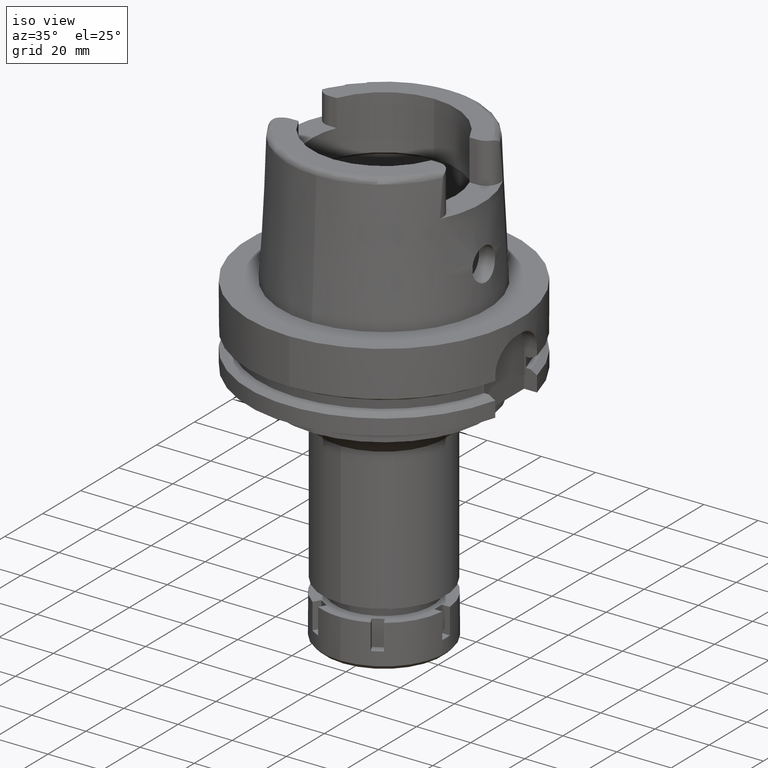
[diagram: clean part render]
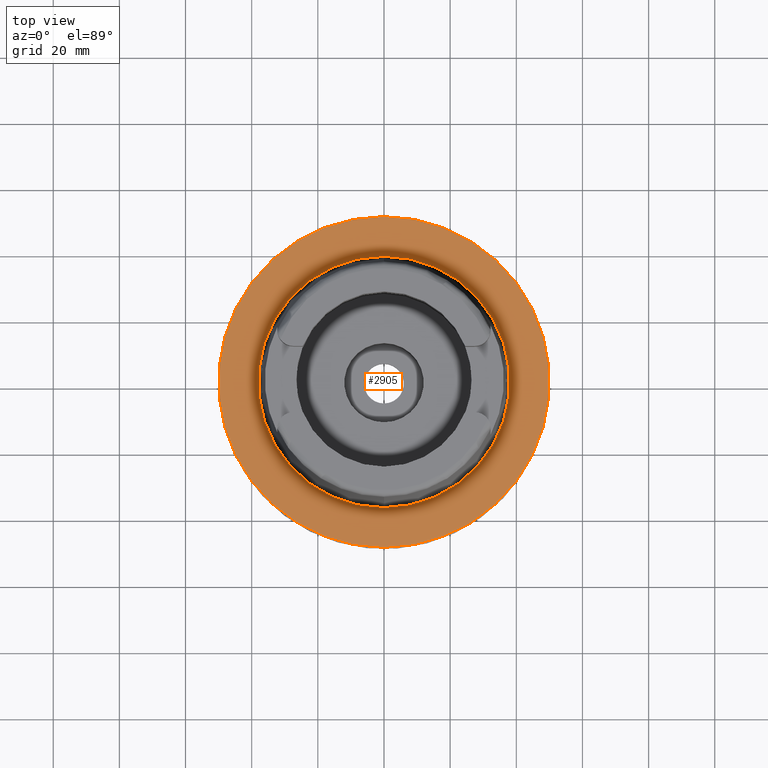
[diagram: tour spotlight — one face highlighted and labeled with its STEP entity id]
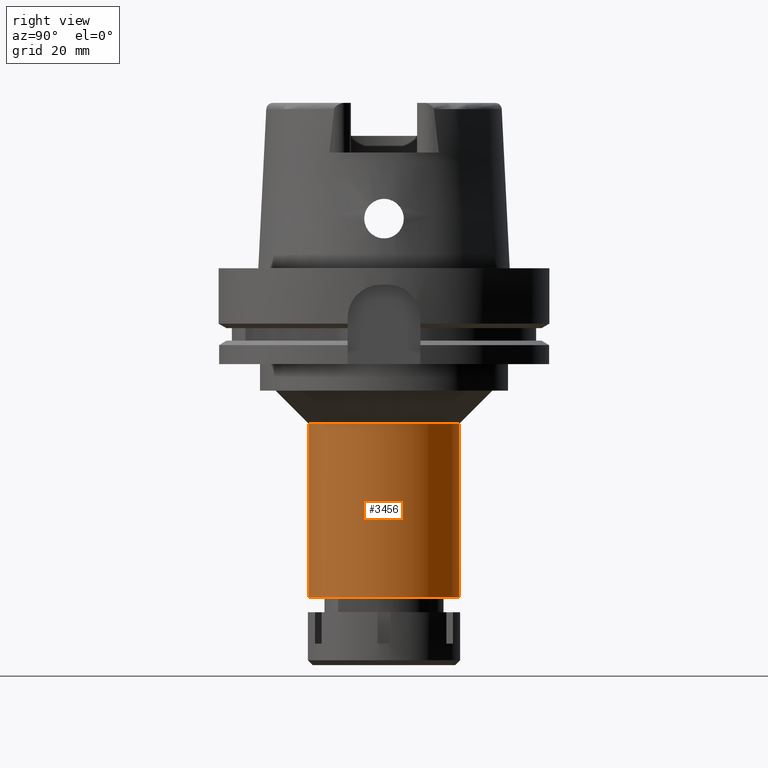
[diagram: tour spotlight — one face highlighted and labeled with its STEP entity id]
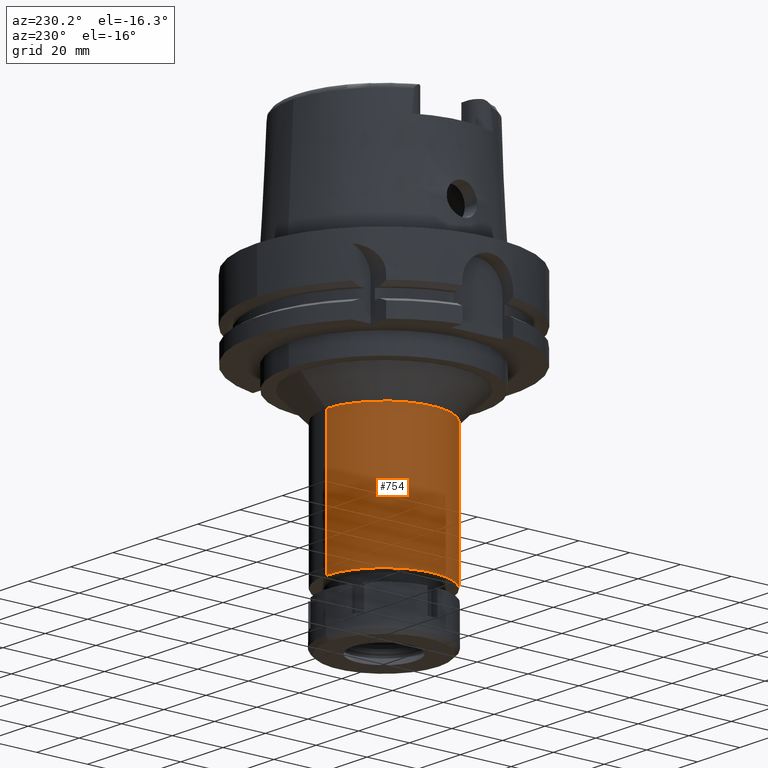
[diagram: tour spotlight — one face highlighted and labeled with its STEP entity id]
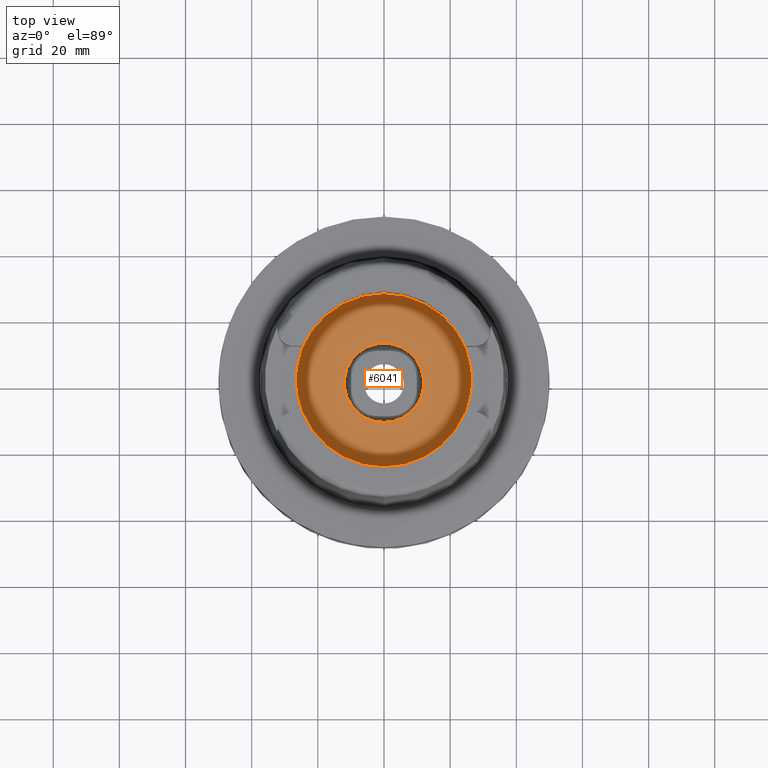
[diagram: tour spotlight — one face highlighted and labeled with its STEP entity id]
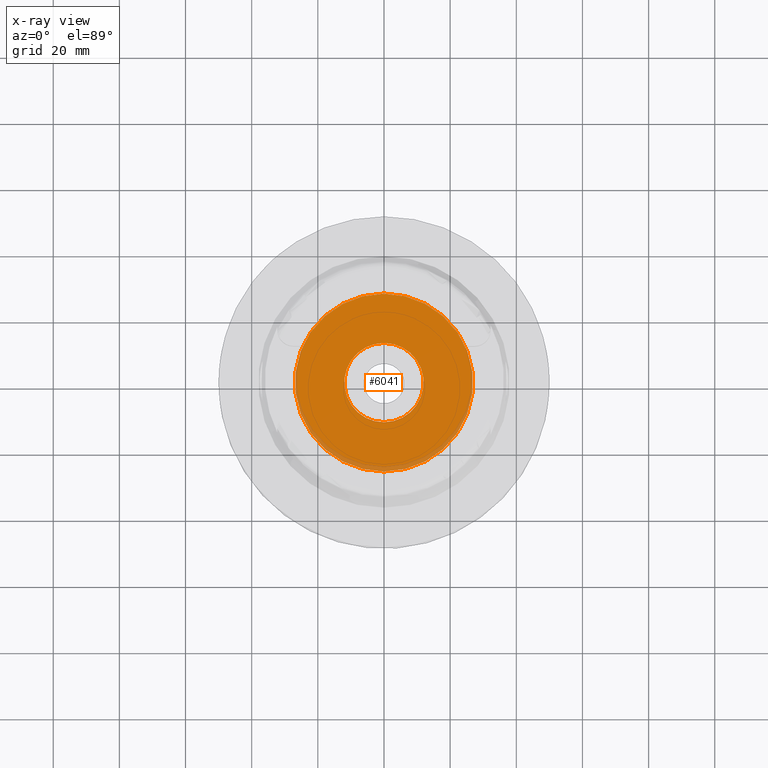
[diagram: x-ray of the same camera — body ghosted, this tour face saturated]
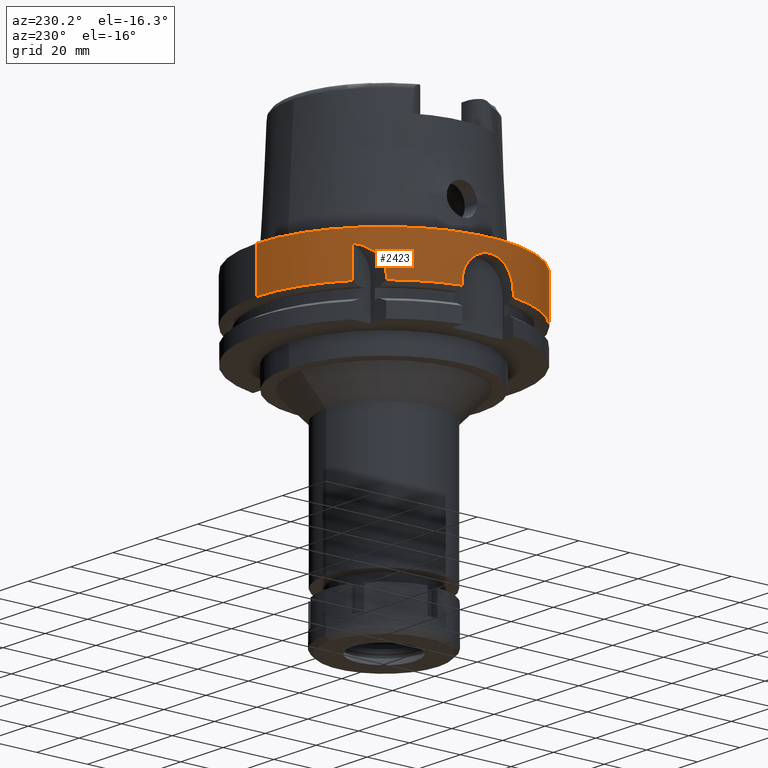
[diagram: tour spotlight — one face highlighted and labeled with its STEP entity id]
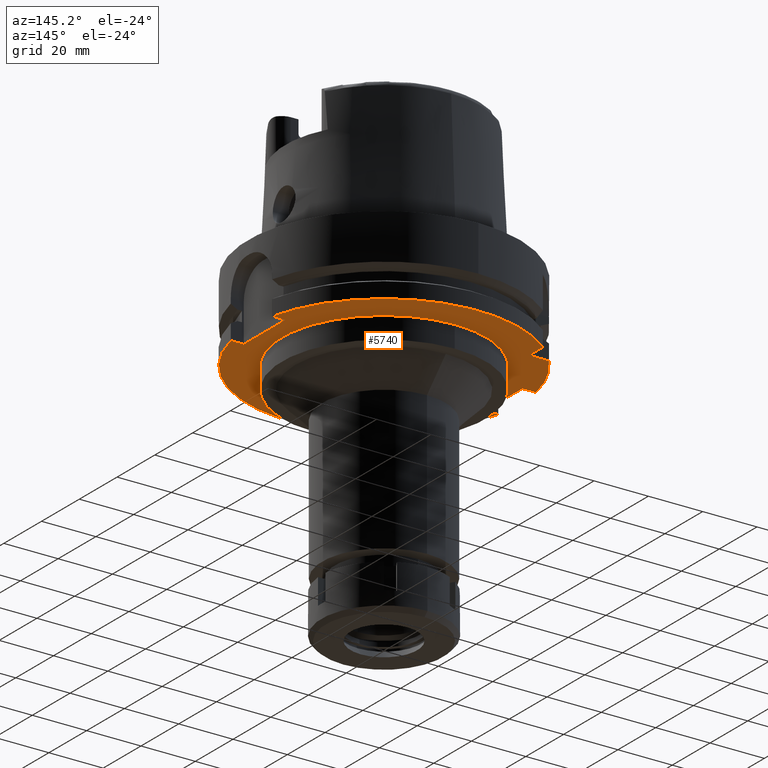
[diagram: tour spotlight — one face highlighted and labeled with its STEP entity id]
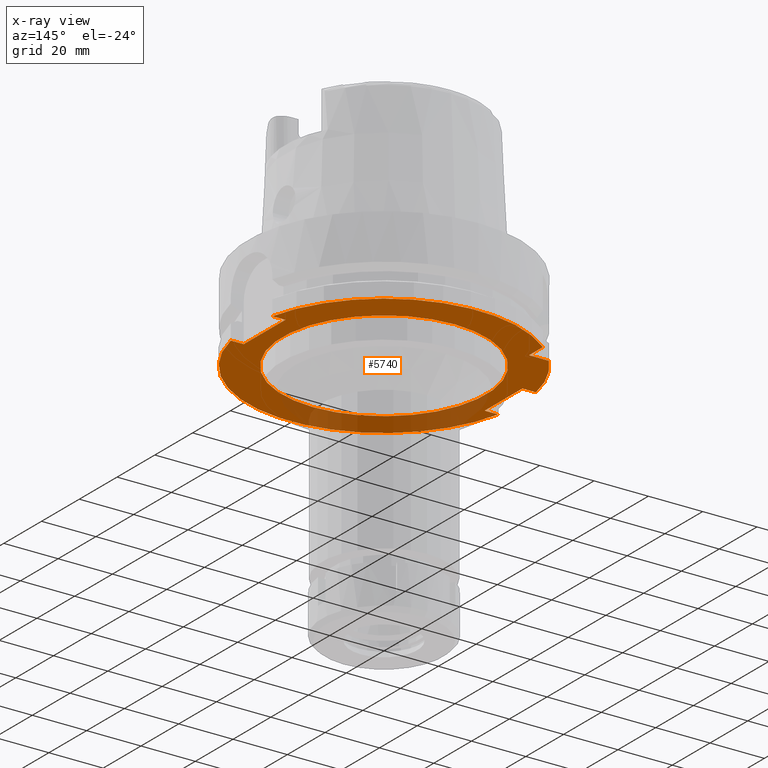
[diagram: x-ray of the same camera — body ghosted, this tour face saturated]
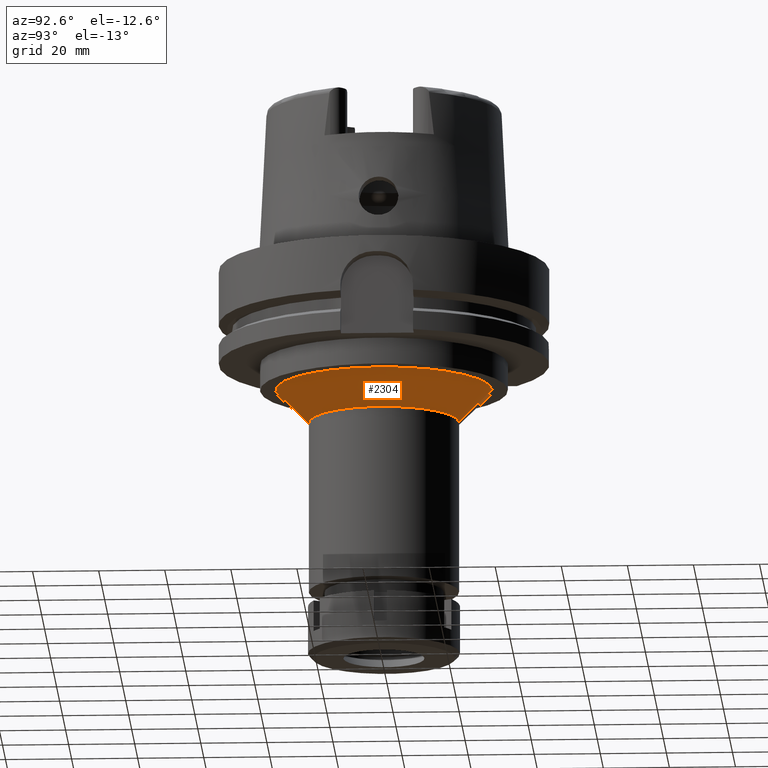
[diagram: tour spotlight — one face highlighted and labeled with its STEP entity id]
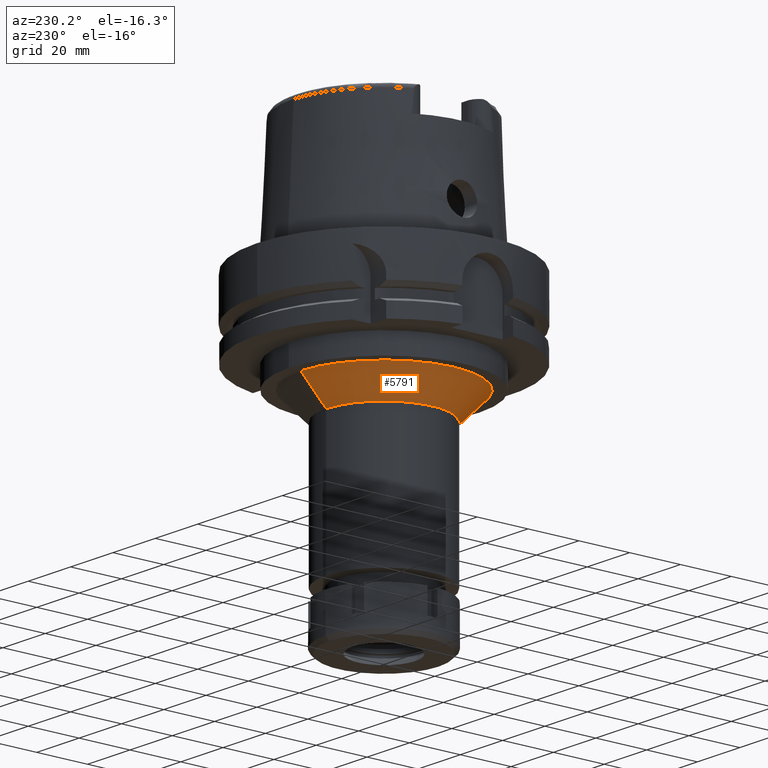
[diagram: tour spotlight — one face highlighted and labeled with its STEP entity id]
A machine part: a face-by-face anatomy tour. The part has 138 B-rep faces; the first image is the clean iso view, then the 8 largest visible faces are spotlighted one at a time (largest first), each with its STEP entity span.

Face 1 — top view, entity #2905. In plain terms, the highlighted planar face has unit normal (0, 0, 1).
Definition (entity closure, byte-faithful):
#233 = DIRECTION ( 'NONE',  ( 0.0000000000000000000, -1.000000000000000000, 0.0000000000000000000 ) ) ;
#243 = FACE_BOUND ( 'NONE', #2762, .T. ) ;
#414 = VERTEX_POINT ( 'NONE', #2997 ) ;
#637 = DIRECTION ( 'NONE',  ( 0.0000000000000000000, 0.0000000000000000000, 1.000000000000000000 ) ) ;
#859 = CARTESIAN_POINT ( 'NONE',  ( 0.0000000000000000000, 50.00000000000000000, 1.942150144410999746E-13 ) ) ;
#1108 = ORIENTED_EDGE ( 'NONE', *, *, #2242, .F. ) ;
#1173 = CARTESIAN_POINT ( 'NONE',  ( 0.0000000000000000000, 0.0000000000000000000, 1.023181539494999863E-12 ) ) ;
#1644 = CARTESIAN_POINT ( 'NONE',  ( 0.0000000000000000000, 0.0000000000000000000, 1.421085471519999843E-14 ) ) ;
#1708 = AXIS2_PLACEMENT_3D ( 'NONE', #4927, #5855, #233 ) ;
#1847 = EDGE_CURVE ( 'NONE', #2696, #414, #5405, .T. ) ;
#2112 = DIRECTION ( 'NONE',  ( 1.000000000000000000, 0.0000000000000000000, 0.0000000000000000000 ) ) ;
#2242 = EDGE_CURVE ( 'NONE', #414, #2696, #5503, .T. ) ;
#2282 = ORIENTED_EDGE ( 'NONE', *, *, #1847, .F. ) ;
#2550 = CARTESIAN_POINT ( 'NONE',  ( 0.0000000000000000000, -38.00001658251999714, 6.892264536873000076E-13 ) ) ;
#2696 = VERTEX_POINT ( 'NONE', #859 ) ;
#2762 = EDGE_LOOP ( 'NONE', ( #3888, #6055 ) ) ;
#2905 = ADVANCED_FACE ( 'NONE', ( #4384, #243 ), #5367, .T. ) ;
#2997 = CARTESIAN_POINT ( 'NONE',  ( 0.0000000000000000000, -50.00000000000000000, 3.410605131648000255E-13 ) ) ;
#3043 = EDGE_CURVE ( 'NONE', #5318, #6015, #3276, .T. ) ;
#3047 = DIRECTION ( 'NONE',  ( 0.0000000000000000000, 0.0000000000000000000, -1.000000000000000000 ) ) ;
#3071 = CIRCLE ( 'NONE', #3947, 38.00001658251999714 ) ;
#3276 = CIRCLE ( 'NONE', #5593, 38.00001658251999714 ) ;
#3386 = EDGE_CURVE ( 'NONE', #6015, #5318, #3071, .T. ) ;
#3888 = ORIENTED_EDGE ( 'NONE', *, *, #3043, .F. ) ;
#3947 = AXIS2_PLACEMENT_3D ( 'NONE', #5209, #4749, #4686 ) ;
#4046 = EDGE_LOOP ( 'NONE', ( #2282, #1108 ) ) ;
#4050 = AXIS2_PLACEMENT_3D ( 'NONE', #4866, #3047, #5396 ) ;
#4384 = FACE_OUTER_BOUND ( 'NONE', #4046, .T. ) ;
#4434 = AXIS2_PLACEMENT_3D ( 'NONE', #1644, #637, #2112 ) ;
#4686 = DIRECTION ( 'NONE',  ( 0.0000000000000000000, -1.000000000000000000, 0.0000000000000000000 ) ) ;
#4749 = DIRECTION ( 'NONE',  ( 0.0000000000000000000, 0.0000000000000000000, 1.000000000000000000 ) ) ;
#4866 = CARTESIAN_POINT ( 'NONE',  ( 0.0000000000000000000, 0.0000000000000000000, 3.410605131648000255E-13 ) ) ;
#4927 = CARTESIAN_POINT ( 'NONE',  ( 0.0000000000000000000, 0.0000000000000000000, 3.410605131648000255E-13 ) ) ;
#4964 = DIRECTION ( 'NONE',  ( 0.0000000000000000000, 1.000000000000000000, 0.0000000000000000000 ) ) ;
#5209 = CARTESIAN_POINT ( 'NONE',  ( 0.0000000000000000000, 0.0000000000000000000, 1.023181539494999863E-12 ) ) ;
#5318 = VERTEX_POINT ( 'NONE', #5409 ) ;
#5367 = PLANE ( 'NONE',  #4434 ) ;
#5396 = DIRECTION ( 'NONE',  ( 0.0000000000000000000, 1.000000000000000000, 0.0000000000000000000 ) ) ;
#5405 = CIRCLE ( 'NONE', #4050, 50.00000000000000000 ) ;
#5409 = CARTESIAN_POINT ( 'NONE',  ( 0.0000000000000000000, 38.00001658251999714, 1.023181539494999863E-12 ) ) ;
#5503 = CIRCLE ( 'NONE', #1708, 50.00000000000000000 ) ;
#5593 = AXIS2_PLACEMENT_3D ( 'NONE', #1173, #5900, #4964 ) ;
#5855 = DIRECTION ( 'NONE',  ( 0.0000000000000000000, 0.0000000000000000000, -1.000000000000000000 ) ) ;
#5900 = DIRECTION ( 'NONE',  ( 0.0000000000000000000, 0.0000000000000000000, 1.000000000000000000 ) ) ;
#6015 = VERTEX_POINT ( 'NONE', #2550 ) ;
#6055 = ORIENTED_EDGE ( 'NONE', *, *, #3386, .F. ) ;

Face 2 — right view, entity #3456. In plain terms, the highlighted cylindrical surface (partial cylindrical patch) has radius 22.75 mm, axis along (0, 0, 1).
Definition (entity closure, byte-faithful):
#72 = CARTESIAN_POINT ( 'NONE',  ( 0.0000000000000000000, 0.0000000000000000000, -99.50000000000000000 ) ) ;
#271 = FACE_OUTER_BOUND ( 'NONE', #1734, .T. ) ;
#510 = VECTOR ( 'NONE', #4486, 1000.000000000000000 ) ;
#822 = DIRECTION ( 'NONE',  ( 0.0000000000000000000, 1.000000000000000000, 0.0000000000000000000 ) ) ;
#888 = CARTESIAN_POINT ( 'NONE',  ( 0.0000000000000000000, -22.75000000000000000, -47.00000000000000000 ) ) ;
#985 = CARTESIAN_POINT ( 'NONE',  ( 0.0000000000000000000, 22.75000000000000000, -99.50000000000000000 ) ) ;
#1198 = CARTESIAN_POINT ( 'NONE',  ( 0.0000000000000000000, 22.75000000000000000, -47.00000000000000000 ) ) ;
#1273 = CIRCLE ( 'NONE', #4295, 22.75000000000000000 ) ;
#1290 = CARTESIAN_POINT ( 'NONE',  ( 0.0000000000000000000, -22.75000000000000000, -99.50000000000000000 ) ) ;
#1734 = EDGE_LOOP ( 'NONE', ( #3766, #1817, #4215, #5590 ) ) ;
#1817 = ORIENTED_EDGE ( 'NONE', *, *, #3955, .T. ) ;
#1894 = VECTOR ( 'NONE', #4242, 1000.000000000000000 ) ;
#1968 = DIRECTION ( 'NONE',  ( 0.0000000000000000000, -1.000000000000000000, 0.0000000000000000000 ) ) ;
#2171 = CARTESIAN_POINT ( 'NONE',  ( 0.0000000000000000000, 0.0000000000000000000, -120.0999999999999943 ) ) ;
#2553 = VERTEX_POINT ( 'NONE', #1290 ) ;
#2814 = DIRECTION ( 'NONE',  ( 0.0000000000000000000, 1.000000000000000000, 0.0000000000000000000 ) ) ;
#2936 = LINE ( 'NONE', #3783, #1894 ) ;
#3171 = CYLINDRICAL_SURFACE ( 'NONE', #5202, 22.75000000000000000 ) ;
#3243 = EDGE_CURVE ( 'NONE', #5953, #4409, #4546, .T. ) ;
#3456 = ADVANCED_FACE ( 'NONE', ( #271 ), #3171, .T. ) ;
#3660 = CARTESIAN_POINT ( 'NONE',  ( 0.0000000000000000000, 22.75000000000000000, -47.00000000000000000 ) ) ;
#3749 = EDGE_CURVE ( 'NONE', #2553, #4409, #4618, .T. ) ;
#3766 = ORIENTED_EDGE ( 'NONE', *, *, #5091, .T. ) ;
#3783 = CARTESIAN_POINT ( 'NONE',  ( 0.0000000000000000000, -22.75000000000000000, -47.00000000000000000 ) ) ;
#3955 = EDGE_CURVE ( 'NONE', #4430, #2553, #2936, .T. ) ;
#4215 = ORIENTED_EDGE ( 'NONE', *, *, #3749, .T. ) ;
#4242 = DIRECTION ( 'NONE',  ( 0.0000000000000000000, 0.0000000000000000000, -1.000000000000000000 ) ) ;
#4295 = AXIS2_PLACEMENT_3D ( 'NONE', #5125, #5095, #2814 ) ;
#4409 = VERTEX_POINT ( 'NONE', #985 ) ;
#4430 = VERTEX_POINT ( 'NONE', #888 ) ;
#4486 = DIRECTION ( 'NONE',  ( 0.0000000000000000000, 0.0000000000000000000, -1.000000000000000000 ) ) ;
#4546 = LINE ( 'NONE', #3660, #510 ) ;
#4618 = CIRCLE ( 'NONE', #4914, 22.75000000000000000 ) ;
#4914 = AXIS2_PLACEMENT_3D ( 'NONE', #72, #5690, #1968 ) ;
#5091 = EDGE_CURVE ( 'NONE', #5953, #4430, #1273, .T. ) ;
#5095 = DIRECTION ( 'NONE',  ( 0.0000000000000000000, 0.0000000000000000000, -1.000000000000000000 ) ) ;
#5125 = CARTESIAN_POINT ( 'NONE',  ( 0.0000000000000000000, 0.0000000000000000000, -47.00000000000000000 ) ) ;
#5202 = AXIS2_PLACEMENT_3D ( 'NONE', #2171, #5896, #822 ) ;
#5590 = ORIENTED_EDGE ( 'NONE', *, *, #3243, .F. ) ;
#5690 = DIRECTION ( 'NONE',  ( 0.0000000000000000000, 0.0000000000000000000, 1.000000000000000000 ) ) ;
#5896 = DIRECTION ( 'NONE',  ( 0.0000000000000000000, 0.0000000000000000000, 1.000000000000000000 ) ) ;
#5953 = VERTEX_POINT ( 'NONE', #1198 ) ;

Face 3 — auxiliary view, entity #754. In plain terms, the highlighted cylindrical surface (partial cylindrical patch) has radius 22.75 mm, axis along (0, 0, 1).
Definition (entity closure, byte-faithful):
#316 = AXIS2_PLACEMENT_3D ( 'NONE', #6059, #3734, #1038 ) ;
#447 = DIRECTION ( 'NONE',  ( 0.0000000000000000000, 0.0000000000000000000, -1.000000000000000000 ) ) ;
#510 = VECTOR ( 'NONE', #4486, 1000.000000000000000 ) ;
#705 = CIRCLE ( 'NONE', #316, 22.75000000000000000 ) ;
#754 = ADVANCED_FACE ( 'NONE', ( #2293 ), #6021, .T. ) ;
#888 = CARTESIAN_POINT ( 'NONE',  ( 0.0000000000000000000, -22.75000000000000000, -47.00000000000000000 ) ) ;
#985 = CARTESIAN_POINT ( 'NONE',  ( 0.0000000000000000000, 22.75000000000000000, -99.50000000000000000 ) ) ;
#1038 = DIRECTION ( 'NONE',  ( 0.0000000000000000000, 1.000000000000000000, 0.0000000000000000000 ) ) ;
#1138 = EDGE_CURVE ( 'NONE', #4430, #5953, #1789, .T. ) ;
#1198 = CARTESIAN_POINT ( 'NONE',  ( 0.0000000000000000000, 22.75000000000000000, -47.00000000000000000 ) ) ;
#1290 = CARTESIAN_POINT ( 'NONE',  ( 0.0000000000000000000, -22.75000000000000000, -99.50000000000000000 ) ) ;
#1786 = AXIS2_PLACEMENT_3D ( 'NONE', #1830, #4630, #2833 ) ;
#1789 = CIRCLE ( 'NONE', #2857, 22.75000000000000000 ) ;
#1830 = CARTESIAN_POINT ( 'NONE',  ( 0.0000000000000000000, 0.0000000000000000000, -120.0999999999999943 ) ) ;
#1894 = VECTOR ( 'NONE', #4242, 1000.000000000000000 ) ;
#1965 = EDGE_CURVE ( 'NONE', #4409, #2553, #705, .T. ) ;
#2293 = FACE_OUTER_BOUND ( 'NONE', #4791, .T. ) ;
#2553 = VERTEX_POINT ( 'NONE', #1290 ) ;
#2833 = DIRECTION ( 'NONE',  ( 0.0000000000000000000, 1.000000000000000000, 0.0000000000000000000 ) ) ;
#2857 = AXIS2_PLACEMENT_3D ( 'NONE', #4656, #447, #5142 ) ;
#2936 = LINE ( 'NONE', #3783, #1894 ) ;
#2970 = ORIENTED_EDGE ( 'NONE', *, *, #3243, .T. ) ;
#3243 = EDGE_CURVE ( 'NONE', #5953, #4409, #4546, .T. ) ;
#3660 = CARTESIAN_POINT ( 'NONE',  ( 0.0000000000000000000, 22.75000000000000000, -47.00000000000000000 ) ) ;
#3734 = DIRECTION ( 'NONE',  ( 0.0000000000000000000, 0.0000000000000000000, 1.000000000000000000 ) ) ;
#3783 = CARTESIAN_POINT ( 'NONE',  ( 0.0000000000000000000, -22.75000000000000000, -47.00000000000000000 ) ) ;
#3917 = ORIENTED_EDGE ( 'NONE', *, *, #3955, .F. ) ;
#3955 = EDGE_CURVE ( 'NONE', #4430, #2553, #2936, .T. ) ;
#4242 = DIRECTION ( 'NONE',  ( 0.0000000000000000000, 0.0000000000000000000, -1.000000000000000000 ) ) ;
#4398 = ORIENTED_EDGE ( 'NONE', *, *, #1965, .T. ) ;
#4409 = VERTEX_POINT ( 'NONE', #985 ) ;
#4430 = VERTEX_POINT ( 'NONE', #888 ) ;
#4486 = DIRECTION ( 'NONE',  ( 0.0000000000000000000, 0.0000000000000000000, -1.000000000000000000 ) ) ;
#4546 = LINE ( 'NONE', #3660, #510 ) ;
#4630 = DIRECTION ( 'NONE',  ( 0.0000000000000000000, 0.0000000000000000000, 1.000000000000000000 ) ) ;
#4656 = CARTESIAN_POINT ( 'NONE',  ( 0.0000000000000000000, 0.0000000000000000000, -47.00000000000000000 ) ) ;
#4791 = EDGE_LOOP ( 'NONE', ( #4398, #3917, #5045, #2970 ) ) ;
#5045 = ORIENTED_EDGE ( 'NONE', *, *, #1138, .T. ) ;
#5142 = DIRECTION ( 'NONE',  ( 0.0000000000000000000, -1.000000000000000000, 0.0000000000000000000 ) ) ;
#5953 = VERTEX_POINT ( 'NONE', #1198 ) ;
#6021 = CYLINDRICAL_SURFACE ( 'NONE', #1786, 22.75000000000000000 ) ;
#6059 = CARTESIAN_POINT ( 'NONE',  ( 0.0000000000000000000, 0.0000000000000000000, -99.50000000000000000 ) ) ;

Face 4 — top view, entity #6041. An x-ray twin of the same camera follows (body ghosted, this face saturated) — the face is partly hidden behind the body. In plain terms, the highlighted planar face has unit normal (0, 0, 1).
Definition (entity closure, byte-faithful):
#25 = DIRECTION ( 'NONE',  ( 0.0000000000000000000, 0.0000000000000000000, 1.000000000000000000 ) ) ;
#169 = DIRECTION ( 'NONE',  ( 0.0000000000000000000, -1.000000000000000000, 0.0000000000000000000 ) ) ;
#997 = VERTEX_POINT ( 'NONE', #2464 ) ;
#1225 = VERTEX_POINT ( 'NONE', #4685 ) ;
#1471 = CARTESIAN_POINT ( 'NONE',  ( 0.0000000000000000000, 0.0000000000000000000, -12.44999999999999929 ) ) ;
#1705 = CIRCLE ( 'NONE', #2968, 12.00000000000000000 ) ;
#1966 = CIRCLE ( 'NONE', #5882, 26.89999999999999858 ) ;
#2161 = EDGE_CURVE ( 'NONE', #997, #3511, #2291, .T. ) ;
#2291 = CIRCLE ( 'NONE', #4819, 26.89999999999999858 ) ;
#2313 = CARTESIAN_POINT ( 'NONE',  ( 0.0000000000000000000, 0.0000000000000000000, -12.44999999999999929 ) ) ;
#2464 = CARTESIAN_POINT ( 'NONE',  ( 0.0000000000000000000, 26.89999999999999858, -12.44999999999999929 ) ) ;
#2794 = EDGE_CURVE ( 'NONE', #1225, #3789, #5316, .T. ) ;
#2887 = DIRECTION ( 'NONE',  ( 0.0000000000000000000, 1.000000000000000000, 0.0000000000000000000 ) ) ;
#2968 = AXIS2_PLACEMENT_3D ( 'NONE', #2313, #4170, #3798 ) ;
#3342 = DIRECTION ( 'NONE',  ( 0.0000000000000000000, 0.0000000000000000000, -1.000000000000000000 ) ) ;
#3429 = CARTESIAN_POINT ( 'NONE',  ( 0.0000000000000000000, 0.0000000000000000000, -12.44999999999999929 ) ) ;
#3511 = VERTEX_POINT ( 'NONE', #3733 ) ;
#3521 = CARTESIAN_POINT ( 'NONE',  ( 0.0000000000000000000, 0.0000000000000000000, -12.44999999999999929 ) ) ;
#3612 = DIRECTION ( 'NONE',  ( 1.000000000000000000, 0.0000000000000000000, 0.0000000000000000000 ) ) ;
#3639 = EDGE_CURVE ( 'NONE', #3789, #1225, #1705, .T. ) ;
#3733 = CARTESIAN_POINT ( 'NONE',  ( 0.0000000000000000000, -26.89999999999999858, -12.44999999999999929 ) ) ;
#3789 = VERTEX_POINT ( 'NONE', #5817 ) ;
#3798 = DIRECTION ( 'NONE',  ( 0.0000000000000000000, 1.000000000000000000, 0.0000000000000000000 ) ) ;
#3845 = CARTESIAN_POINT ( 'NONE',  ( 0.0000000000000000000, 0.0000000000000000000, -12.44999999999999929 ) ) ;
#3860 = ORIENTED_EDGE ( 'NONE', *, *, #5976, .F. ) ;
#3928 = DIRECTION ( 'NONE',  ( 0.0000000000000000000, 0.0000000000000000000, -1.000000000000000000 ) ) ;
#4140 = ORIENTED_EDGE ( 'NONE', *, *, #3639, .F. ) ;
#4170 = DIRECTION ( 'NONE',  ( 0.0000000000000000000, 0.0000000000000000000, 1.000000000000000000 ) ) ;
#4441 = PLANE ( 'NONE',  #5481 ) ;
#4664 = ORIENTED_EDGE ( 'NONE', *, *, #2794, .F. ) ;
#4685 = CARTESIAN_POINT ( 'NONE',  ( 0.0000000000000000000, -12.00000000000000000, -12.44999999999999929 ) ) ;
#4736 = EDGE_LOOP ( 'NONE', ( #4140, #4664 ) ) ;
#4819 = AXIS2_PLACEMENT_3D ( 'NONE', #1471, #3342, #2887 ) ;
#4853 = ORIENTED_EDGE ( 'NONE', *, *, #2161, .F. ) ;
#4891 = FACE_OUTER_BOUND ( 'NONE', #5784, .T. ) ;
#5214 = DIRECTION ( 'NONE',  ( 0.0000000000000000000, -1.000000000000000000, 0.0000000000000000000 ) ) ;
#5316 = CIRCLE ( 'NONE', #5701, 12.00000000000000000 ) ;
#5359 = FACE_BOUND ( 'NONE', #4736, .T. ) ;
#5390 = DIRECTION ( 'NONE',  ( 0.0000000000000000000, 0.0000000000000000000, 1.000000000000000000 ) ) ;
#5481 = AXIS2_PLACEMENT_3D ( 'NONE', #3521, #5390, #3612 ) ;
#5701 = AXIS2_PLACEMENT_3D ( 'NONE', #3845, #25, #5214 ) ;
#5784 = EDGE_LOOP ( 'NONE', ( #4853, #3860 ) ) ;
#5817 = CARTESIAN_POINT ( 'NONE',  ( 0.0000000000000000000, 12.00000000000000000, -12.44999999999999929 ) ) ;
#5882 = AXIS2_PLACEMENT_3D ( 'NONE', #3429, #3928, #169 ) ;
#5976 = EDGE_CURVE ( 'NONE', #3511, #997, #1966, .T. ) ;
#6041 = ADVANCED_FACE ( 'NONE', ( #4891, #5359 ), #4441, .T. ) ;

Face 5 — auxiliary view, entity #2423. In plain terms, the highlighted cylindrical surface (partial cylindrical patch) has radius 50 mm, axis along (0, 0, 1).
Definition (entity closure, byte-faithful):
#41 = CARTESIAN_POINT ( 'NONE',  ( -49.43014711906920411, -7.542170968102370310, -8.400587943207870723 ) ) ;
#66 = CARTESIAN_POINT ( 'NONE',  ( -49.90100946537628346, 3.202912929186905622, -5.504239573960262533 ) ) ;
#92 = B_SPLINE_CURVE_WITH_KNOTS ( 'NONE', 3,
 ( #3938, #151, #3501, #244, #5765, #5340, #4844, #5800, #1614, #1147, #3021, #5368, #4483, #4870, #3568, #665, #4814, #276, #214, #1174, #4004, #3051, #704, #2506, #2596, #4452, #5434, #4358, #2147, #5868, #3087, #1677, #3535, #1244, #5400, #1211, #1576 ),
 .UNSPECIFIED., .F., .F.,
 ( 4, 2, 2, 1, 1, 2, 2, 2, 2, 1, 1, 1, 2, 2, 2, 2, 1, 1, 1, 1, 2, 2, 4 ),
 ( 0.0000000000000000000, 0.1249999999999689138, 0.1874999999999531486, 0.2187499999999452660, 0.2343749999999413247, 0.2421874999999395484, 0.2499999999999377720, 0.3749999999999147349, 0.4374999999999029110, 0.4687499999998970268, 0.4843749999998943068, 0.4921874999998927525, 0.4960937499998926969, 0.4999999999998926414, 0.6249999999998983036, 0.6874999999999010791, 0.7187499999999024114, 0.7343749999999027445, 0.7421874999999025224, 0.7460937499999020783, 0.7480468749999020783, 0.7499999999999021894, 1.000000000000000000 ),
 .UNSPECIFIED. ) ;
#105 = DIRECTION ( 'NONE',  ( -0.9797958971132723072, -0.1999999999999946265, 0.0000000000000000000 ) ) ;
#151 = CARTESIAN_POINT ( 'NONE',  ( -38.82975663071001549, 31.49999999999999289, -14.13560605632446965 ) ) ;
#214 = CARTESIAN_POINT ( 'NONE',  ( -37.35955824479535892, 33.23047160999308147, -9.014027414559329543 ) ) ;
#233 = DIRECTION ( 'NONE',  ( 0.0000000000000000000, -1.000000000000000000, 0.0000000000000000000 ) ) ;
#244 = CARTESIAN_POINT ( 'NONE',  ( -38.70795195105639408, 31.64970836107855590, -12.89504596101290446 ) ) ;
#270 = ORIENTED_EDGE ( 'NONE', *, *, #2793, .T. ) ;
#276 = CARTESIAN_POINT ( 'NONE',  ( -37.41496843156759411, 33.16811869400901713, -9.106359830125011712 ) ) ;
#292 = DIRECTION ( 'NONE',  ( 0.0000000000000000000, 0.0000000000000000000, 1.000000000000000000 ) ) ;
#366 = VECTOR ( 'NONE', #3815, 1000.000000000000227 ) ;
#414 = VERTEX_POINT ( 'NONE', #2997 ) ;
#428 = CARTESIAN_POINT ( 'NONE',  ( 0.0000000000000000000, 0.0000000000000000000, -16.75240473580999989 ) ) ;
#464 = CARTESIAN_POINT ( 'NONE',  ( -49.87775717505284945, -3.507471975412095766, -5.629572686885143007 ) ) ;
#470 = CARTESIAN_POINT ( 'NONE',  ( -48.98979485565999425, 10.00000000000000000, -15.00000000000000000 ) ) ;
#497 = VECTOR ( 'NONE', #2766, 1000.000000000000000 ) ;
#530 = CARTESIAN_POINT ( 'NONE',  ( -49.00272814634950436, -9.937255677099594564, -13.70646028085033308 ) ) ;
#659 = ORIENTED_EDGE ( 'NONE', *, *, #2242, .T. ) ;
#665 = CARTESIAN_POINT ( 'NONE',  ( -37.61111374835114418, 32.94560763873037246, -9.456286333190798032 ) ) ;
#673 = DIRECTION ( 'NONE',  ( -4.014125812537999910E-13, -2.635537149646000036E-14, -1.000000000000000000 ) ) ;
#704 = CARTESIAN_POINT ( 'NONE',  ( -37.01904884150378905, 33.61207828786592700, -8.465092778731792222 ) ) ;
#757 = CARTESIAN_POINT ( 'NONE',  ( 0.0000000000000000000, 0.0000000000000000000, -120.0999999999999943 ) ) ;
#814 = ORIENTED_EDGE ( 'NONE', *, *, #5661, .F. ) ;
#859 = CARTESIAN_POINT ( 'NONE',  ( 0.0000000000000000000, 50.00000000000000000, 1.942150144410999746E-13 ) ) ;
#909 = CARTESIAN_POINT ( 'NONE',  ( -49.80599999558258162, 4.409852773731934406, -6.018768694911558192 ) ) ;
#949 = CARTESIAN_POINT ( 'NONE',  ( 0.0000000000000000000, 50.00000000000000000, 1.942150144410999746E-13 ) ) ;
#965 = CARTESIAN_POINT ( 'NONE',  ( -49.24057558907730225, 8.689272595704203184, -10.00695907174307386 ) ) ;
#991 = VECTOR ( 'NONE', #673, 1000.000000000000000 ) ;
#1002 = CARTESIAN_POINT ( 'NONE',  ( -49.05607991478245111, -9.670065607374269234, -12.43135423384172000 ) ) ;
#1032 = VERTEX_POINT ( 'NONE', #470 ) ;
#1034 = CARTESIAN_POINT ( 'NONE',  ( -49.99998093219981854, -0.6534672038368466440, -5.000092578581924130 ) ) ;
#1110 = AXIS2_PLACEMENT_3D ( 'NONE', #757, #292, #3673 ) ;
#1147 = CARTESIAN_POINT ( 'NONE',  ( -38.47944922682342650, 31.92697518000755963, -11.74584936445064365 ) ) ;
#1174 = CARTESIAN_POINT ( 'NONE',  ( -37.33552110344186303, 33.25746208934032921, -8.974670227643434472 ) ) ;
#1184 = ORIENTED_EDGE ( 'NONE', *, *, #4798, .T. ) ;
#1211 = CARTESIAN_POINT ( 'NONE',  ( -32.91423865028353646, 37.68247883786838770, -5.317893887002639985 ) ) ;
#1221 = EDGE_CURVE ( 'NONE', #2696, #4993, #3839, .T. ) ;
#1244 = CARTESIAN_POINT ( 'NONE',  ( -35.13510003367665746, 35.57423776375765812, -6.581748315450171027 ) ) ;
#1324 = FACE_OUTER_BOUND ( 'NONE', #2046, .T. ) ;
#1325 = EDGE_CURVE ( 'NONE', #1032, #5259, #2628, .T. ) ;
#1378 = CARTESIAN_POINT ( 'NONE',  ( -48.98979485566343328, 10.00000000000068212, -14.67491818143933102 ) ) ;
#1413 = CARTESIAN_POINT ( 'NONE',  ( -49.63038059569378646, 6.093458209324535524, -7.043598460244475667 ) ) ;
#1465 = CARTESIAN_POINT ( 'NONE',  ( -49.72223162459410872, 5.270285573454658312, -6.495242745769467696 ) ) ;
#1475 = EDGE_CURVE ( 'NONE', #5024, #5474, #3505, .T. ) ;
#1498 = CARTESIAN_POINT ( 'NONE',  ( -48.98979485566344749, -10.00000000000062350, -14.35040054654093744 ) ) ;
#1528 = ORIENTED_EDGE ( 'NONE', *, *, #1475, .F. ) ;
#1575 = CARTESIAN_POINT ( 'NONE',  ( 0.0000000000000000000, 0.0000000000000000000, -16.75240473580999989 ) ) ;
#1576 = CARTESIAN_POINT ( 'NONE',  ( -31.50000000000000000, 38.82975663071000128, -5.000000000003000267 ) ) ;
#1614 = CARTESIAN_POINT ( 'NONE',  ( -38.49419901225022755, 31.90919284754650675, -11.80539935705807153 ) ) ;
#1639 = VERTEX_POINT ( 'NONE', #5085 ) ;
#1677 = CARTESIAN_POINT ( 'NONE',  ( -35.15477969971266248, 35.55479155459323692, -6.596091442995040133 ) ) ;
#1708 = AXIS2_PLACEMENT_3D ( 'NONE', #4927, #5855, #233 ) ;
#1839 = CARTESIAN_POINT ( 'NONE',  ( -49.00578942613814348, 9.921372526925964053, -13.70665973700983642 ) ) ;
#1841 = ORIENTED_EDGE ( 'NONE', *, *, #1325, .F. ) ;
#1901 = CARTESIAN_POINT ( 'NONE',  ( -49.80800701239591888, -4.419787250587710048, -6.005617724488732989 ) ) ;
#1924 = EDGE_CURVE ( 'NONE', #414, #5072, #5542, .T. ) ;
#1932 = CARTESIAN_POINT ( 'NONE',  ( -49.36385112955839816, -7.959134732128759993, -8.910023231633859453 ) ) ;
#1934 = VERTEX_POINT ( 'NONE', #3199 ) ;
#1961 = CARTESIAN_POINT ( 'NONE',  ( -49.98728101191420592, 1.296888008267449433, -5.063028901972332463 ) ) ;
#2025 = DIRECTION ( 'NONE',  ( -3.028823767049074487E-07, -2.457085509676059455E-07, -0.9999999999999239497 ) ) ;
#2046 = EDGE_LOOP ( 'NONE', ( #814, #2444, #270, #1841, #4583, #1528, #3828, #2649, #659, #5159, #1184, #4443 ) ) ;
#2055 = VERTEX_POINT ( 'NONE', #3311 ) ;
#2147 = CARTESIAN_POINT ( 'NONE',  ( -35.31810668511150908, 35.39271097215885220, -6.717994528695158785 ) ) ;
#2242 = EDGE_CURVE ( 'NONE', #414, #2696, #5503, .T. ) ;
#2248 = CARTESIAN_POINT ( 'NONE',  ( 0.0000000000000000000, 50.00000000000000000, -16.75240473580999989 ) ) ;
#2327 = B_SPLINE_CURVE_WITH_KNOTS ( 'NONE', 3,
 ( #5628, #1378, #5103, #1839, #4276, #4218, #4670, #2455, #965, #2846, #5684, #3697, #1413, #1465, #6053, #909, #4250, #66, #2913, #1961, #2335, #1034, #5595, #3283, #5191, #2818, #464, #1901, #3306, #5158, #2399, #41, #1932, #3792, #3824, #3335, #5650, #1002, #2881, #530, #1498, #3367 ),
 .UNSPECIFIED., .F., .F.,
 ( 4, 2, 2, 2, 2, 2, 2, 2, 2, 2, 2, 2, 2, 2, 2, 2, 2, 2, 2, 2, 4 ),
 ( 0.0000000000000000000, 0.03125000000000001388, 0.06250000000000002776, 0.1250000000000000555, 0.1875000000000000833, 0.2500000000000001110, 0.3125000000000000555, 0.3437500000000001110, 0.3750000000000001110, 0.4375000000000000555, 0.5000000000000000000, 0.5625000000000000000, 0.5937500000000000000, 0.6250000000000000000, 0.6875000000000001110, 0.7500000000000001110, 0.8125000000000001110, 0.8750000000000001110, 0.9062500000000002220, 0.9375000000000002220, 1.000000000000000000 ),
 .UNSPECIFIED. ) ;
#2335 = CARTESIAN_POINT ( 'NONE',  ( -50.00001902513290730, 0.6505459962104294114, -4.999907634755266450 ) ) ;
#2391 = CARTESIAN_POINT ( 'NONE',  ( -31.50000355958999876, 38.82975374304999860, -16.75239179145000179 ) ) ;
#2399 = CARTESIAN_POINT ( 'NONE',  ( -49.56400208266023100, -6.605564674951361681, -7.463224986165742258 ) ) ;
#2423 = ADVANCED_FACE ( 'NONE', ( #1324 ), #4983, .T. ) ;
#2444 = ORIENTED_EDGE ( 'NONE', *, *, #4766, .F. ) ;
#2455 = CARTESIAN_POINT ( 'NONE',  ( -49.18452341425260954, 8.997079885488112438, -10.58577456573120301 ) ) ;
#2506 = CARTESIAN_POINT ( 'NONE',  ( -36.69561777759044219, 33.96633440811724824, -8.038036708727762658 ) ) ;
#2596 = CARTESIAN_POINT ( 'NONE',  ( -36.15162045785753975, 34.54175801211366093, -7.449538130392278745 ) ) ;
#2628 = LINE ( 'NONE', #5312, #991 ) ;
#2644 = EDGE_CURVE ( 'NONE', #1032, #5474, #2327, .T. ) ;
#2649 = ORIENTED_EDGE ( 'NONE', *, *, #1924, .F. ) ;
#2674 = VECTOR ( 'NONE', #4943, 1000.000000000000000 ) ;
#2696 = VERTEX_POINT ( 'NONE', #859 ) ;
#2766 = DIRECTION ( 'NONE',  ( 0.0000000000000000000, 2.969006079282000197E-14, -1.000000000000000000 ) ) ;
#2793 = EDGE_CURVE ( 'NONE', #1934, #5259, #3655, .T. ) ;
#2818 = CARTESIAN_POINT ( 'NONE',  ( -49.89840428331468303, -3.201080303789233916, -5.520506140544677365 ) ) ;
#2830 = DIRECTION ( 'NONE',  ( 0.0000000000000000000, -2.969006079282000197E-14, -1.000000000000000000 ) ) ;
#2839 = CARTESIAN_POINT ( 'NONE',  ( -38.82975730067999365, 31.49999917413000361, -16.75240773889999701 ) ) ;
#2846 = CARTESIAN_POINT ( 'NONE',  ( -49.36413914366089273, 7.957355665758519159, -8.907671122064941827 ) ) ;
#2881 = CARTESIAN_POINT ( 'NONE',  ( -49.04044175056966282, -9.748803872950455585, -12.74903866396713603 ) ) ;
#2913 = CARTESIAN_POINT ( 'NONE',  ( -49.93766217754912873, 2.576834824168039439, -5.315698980292880016 ) ) ;
#2971 = AXIS2_PLACEMENT_3D ( 'NONE', #3482, #4432, #105 ) ;
#2997 = CARTESIAN_POINT ( 'NONE',  ( 0.0000000000000000000, -50.00000000000000000, 3.410605131648000255E-13 ) ) ;
#3021 = CARTESIAN_POINT ( 'NONE',  ( -38.47231406234279660, 31.93557209651652684, -11.71751829310096760 ) ) ;
#3051 = CARTESIAN_POINT ( 'NONE',  ( -37.31212725350869164, 33.28370591722875815, -8.936650956200468343 ) ) ;
#3087 = CARTESIAN_POINT ( 'NONE',  ( -35.17537157908070355, 35.53442910794382215, -6.611160315522909059 ) ) ;
#3199 = CARTESIAN_POINT ( 'NONE',  ( -38.82975730067999365, 31.49999917413000361, -16.75240773889999701 ) ) ;
#3283 = CARTESIAN_POINT ( 'NONE',  ( -49.94990226667655975, -2.260620412865460782, -5.253370156851863371 ) ) ;
#3306 = CARTESIAN_POINT ( 'NONE',  ( -49.75276536956204154, -4.996883103095633771, -6.312905504085933650 ) ) ;
#3311 = CARTESIAN_POINT ( 'NONE',  ( -31.50000000000000000, 38.82975663071000128, -5.000000000003000267 ) ) ;
#3335 = CARTESIAN_POINT ( 'NONE',  ( -49.11376107973310212, -9.373077407001231265, -11.49978229924532691 ) ) ;
#3367 = CARTESIAN_POINT ( 'NONE',  ( -48.98979485565999425, -10.00000000000000000, -15.00000000000000000 ) ) ;
#3437 = DIRECTION ( 'NONE',  ( 0.0000000000000000000, 0.0000000000000000000, 1.000000000000000000 ) ) ;
#3482 = CARTESIAN_POINT ( 'NONE',  ( 0.0000000000000000000, 0.0000000000000000000, -16.75240473580999989 ) ) ;
#3501 = CARTESIAN_POINT ( 'NONE',  ( -38.79930546079661013, 31.53776354106160085, -13.63538981409432793 ) ) ;
#3505 = LINE ( 'NONE', #5438, #2674 ) ;
#3535 = CARTESIAN_POINT ( 'NONE',  ( -35.14103262299726538, 35.56837754835278531, -6.586063966159282579 ) ) ;
#3568 = CARTESIAN_POINT ( 'NONE',  ( -37.78099051895965488, 32.75102233709715449, -9.787068205468445470 ) ) ;
#3655 = CIRCLE ( 'NONE', #5210, 50.00000000000000711 ) ;
#3673 = DIRECTION ( 'NONE',  ( 0.0000000000000000000, 1.000000000000000000, 0.0000000000000000000 ) ) ;
#3697 = CARTESIAN_POINT ( 'NONE',  ( -49.56420845892561289, 6.603983419873173055, -7.461919445018931007 ) ) ;
#3792 = CARTESIAN_POINT ( 'NONE',  ( -49.24031673255338148, -8.690732541230682173, -10.00953471134053885 ) ) ;
#3815 = DIRECTION ( 'NONE',  ( 3.166954524355913946E-07, 3.903884141548892995E-07, 0.9999999999998735456 ) ) ;
#3824 = CARTESIAN_POINT ( 'NONE',  ( -49.18418648216827904, -8.998901598876983599, -10.58972447286112128 ) ) ;
#3828 = ORIENTED_EDGE ( 'NONE', *, *, #3829, .T. ) ;
#3829 = EDGE_CURVE ( 'NONE', #5024, #5072, #4818, .T. ) ;
#3839 = LINE ( 'NONE', #949, #5001 ) ;
#3938 = CARTESIAN_POINT ( 'NONE',  ( -38.82975663071000128, 31.50000000000000000, -14.63689785921000031 ) ) ;
#4004 = CARTESIAN_POINT ( 'NONE',  ( -37.31943191621705580, 33.27551498121371054, -8.948479877372012226 ) ) ;
#4157 = CARTESIAN_POINT ( 'NONE',  ( 0.0000000000000000000, -50.00000000000000000, -16.75240473580999989 ) ) ;
#4181 = DIRECTION ( 'NONE',  ( 0.0000000000000000000, 0.0000000000000000000, 1.000000000000000000 ) ) ;
#4218 = CARTESIAN_POINT ( 'NONE',  ( -49.05322591408813082, 9.684917423235502199, -12.42503873579159190 ) ) ;
#4237 = DIRECTION ( 'NONE',  ( -0.7765951326141738997, 0.6299999999999789102, 0.0000000000000000000 ) ) ;
#4250 = CARTESIAN_POINT ( 'NONE',  ( -49.83155973877006062, 4.111934243792334520, -5.878629034508061402 ) ) ;
#4276 = CARTESIAN_POINT ( 'NONE',  ( -49.01530539507295003, 9.874410693610940370, -13.38689750556719638 ) ) ;
#4358 = CARTESIAN_POINT ( 'NONE',  ( -35.50466536103112958, 35.20598183753870813, -6.864028796967512669 ) ) ;
#4432 = DIRECTION ( 'NONE',  ( 0.0000000000000000000, 0.0000000000000000000, 1.000000000000000000 ) ) ;
#4443 = ORIENTED_EDGE ( 'NONE', *, *, #5249, .F. ) ;
#4452 = CARTESIAN_POINT ( 'NONE',  ( -35.96047956396942169, 34.74089757571865533, -7.262032148140989740 ) ) ;
#4458 = CARTESIAN_POINT ( 'NONE',  ( -48.98979485565999425, -10.00000000000000000, -15.00000000000000000 ) ) ;
#4483 = CARTESIAN_POINT ( 'NONE',  ( -38.17626925564933771, 32.29032047229947011, -10.70667682356739547 ) ) ;
#4583 = ORIENTED_EDGE ( 'NONE', *, *, #2644, .T. ) ;
#4586 = CIRCLE ( 'NONE', #5563, 50.00000000000000000 ) ;
#4635 = LINE ( 'NONE', #2839, #366 ) ;
#4670 = CARTESIAN_POINT ( 'NONE',  ( -49.09037232091179703, 9.497375181979206715, -11.80165514795758419 ) ) ;
#4766 = EDGE_CURVE ( 'NONE', #1934, #1639, #4635, .T. ) ;
#4798 = EDGE_CURVE ( 'NONE', #4993, #5099, #4586, .T. ) ;
#4814 = CARTESIAN_POINT ( 'NONE',  ( -37.52308289956834386, 33.04593508166848181, -9.292999150610745218 ) ) ;
#4818 = CIRCLE ( 'NONE', #2971, 49.99999999999997868 ) ;
#4844 = CARTESIAN_POINT ( 'NONE',  ( -38.56426049302753256, 31.82455710308548902, -12.10453043109732896 ) ) ;
#4870 = CARTESIAN_POINT ( 'NONE',  ( -37.88599513008917086, 32.62939401043674792, -10.01320258638838112 ) ) ;
#4927 = CARTESIAN_POINT ( 'NONE',  ( 0.0000000000000000000, 0.0000000000000000000, 3.410605131648000255E-13 ) ) ;
#4943 = DIRECTION ( 'NONE',  ( 3.933032361779000221E-13, -2.534170336197999844E-14, 1.000000000000000000 ) ) ;
#4983 = CYLINDRICAL_SURFACE ( 'NONE', #1110, 50.00000000000000000 ) ;
#4993 = VERTEX_POINT ( 'NONE', #2248 ) ;
#5001 = VECTOR ( 'NONE', #2830, 1000.000000000000000 ) ;
#5024 = VERTEX_POINT ( 'NONE', #5970 ) ;
#5072 = VERTEX_POINT ( 'NONE', #4157 ) ;
#5085 = CARTESIAN_POINT ( 'NONE',  ( -38.82975663071000128, 31.50000000000000000, -14.63689785921000031 ) ) ;
#5099 = VERTEX_POINT ( 'NONE', #2391 ) ;
#5103 = CARTESIAN_POINT ( 'NONE',  ( -48.99301193926181952, 9.984278202072680131, -14.35123376512916415 ) ) ;
#5110 = CARTESIAN_POINT ( 'NONE',  ( 0.0000000000000000000, -50.00000000000000000, 1.942150144410999746E-13 ) ) ;
#5123 = DIRECTION ( 'NONE',  ( 0.0000000000000000000, 1.000000000000000000, 0.0000000000000000000 ) ) ;
#5158 = CARTESIAN_POINT ( 'NONE',  ( -49.62992460414876206, -6.097301571285889565, -7.046390791713665891 ) ) ;
#5159 = ORIENTED_EDGE ( 'NONE', *, *, #1221, .T. ) ;
#5184 = CARTESIAN_POINT ( 'NONE',  ( -48.98979485565999425, 10.00000000000000000, -16.75240473580999989 ) ) ;
#5191 = CARTESIAN_POINT ( 'NONE',  ( -49.93451952851529541, -2.577096154346463663, -5.332174714492534662 ) ) ;
#5210 = AXIS2_PLACEMENT_3D ( 'NONE', #1575, #3437, #4237 ) ;
#5222 = LINE ( 'NONE', #5620, #5471 ) ;
#5249 = EDGE_CURVE ( 'NONE', #2055, #5099, #5222, .T. ) ;
#5259 = VERTEX_POINT ( 'NONE', #5184 ) ;
#5312 = CARTESIAN_POINT ( 'NONE',  ( -48.98979485565999425, 10.00000000000000000, -15.00000000000000000 ) ) ;
#5340 = CARTESIAN_POINT ( 'NONE',  ( -38.60137285635949667, 31.77952732340694908, -12.28574532040820699 ) ) ;
#5368 = CARTESIAN_POINT ( 'NONE',  ( -38.33679906225154355, 32.09873330845813655, -11.18913385722922804 ) ) ;
#5400 = CARTESIAN_POINT ( 'NONE',  ( -34.12332425380917300, 36.57299393130268328, -5.848491789764517002 ) ) ;
#5434 = CARTESIAN_POINT ( 'NONE',  ( -35.65905554217150808, 35.04933304018656059, -6.994422917600580547 ) ) ;
#5438 = CARTESIAN_POINT ( 'NONE',  ( -48.98979485565999425, -10.00000000000000000, -16.75240473580999989 ) ) ;
#5471 = VECTOR ( 'NONE', #2025, 1000.000000000000114 ) ;
#5474 = VERTEX_POINT ( 'NONE', #4458 ) ;
#5503 = CIRCLE ( 'NONE', #1708, 50.00000000000000000 ) ;
#5542 = LINE ( 'NONE', #5110, #497 ) ;
#5563 = AXIS2_PLACEMENT_3D ( 'NONE', #428, #4181, #5123 ) ;
#5595 = CARTESIAN_POINT ( 'NONE',  ( -49.98727915188340631, -1.297878036683145719, -5.063039950086047902 ) ) ;
#5620 = CARTESIAN_POINT ( 'NONE',  ( -31.50000000000000000, 38.82975663071000128, -5.000000000003000267 ) ) ;
#5628 = CARTESIAN_POINT ( 'NONE',  ( -48.98979485565999425, 10.00000000000000000, -15.00000000000000000 ) ) ;
#5650 = CARTESIAN_POINT ( 'NONE',  ( -49.09271153067659554, -9.482342538751563410, -11.80743772968249772 ) ) ;
#5661 = EDGE_CURVE ( 'NONE', #1639, #2055, #92, .T. ) ;
#5684 = CARTESIAN_POINT ( 'NONE',  ( -49.43052049200248632, 7.539695024303968651, -8.397874724588268336 ) ) ;
#5765 = CARTESIAN_POINT ( 'NONE',  ( -38.66988798866464805, 31.69622683051191814, -12.64992505877948048 ) ) ;
#5800 = CARTESIAN_POINT ( 'NONE',  ( -38.51596684074300470, 31.88293214842361678, -11.89486056925824720 ) ) ;
#5855 = DIRECTION ( 'NONE',  ( 0.0000000000000000000, 0.0000000000000000000, -1.000000000000000000 ) ) ;
#5868 = CARTESIAN_POINT ( 'NONE',  ( -35.22321814767106929, 35.48703309619381230, -6.646514413698103141 ) ) ;
#5970 = CARTESIAN_POINT ( 'NONE',  ( -48.98979485565999425, -10.00000000000000000, -16.75240473580999989 ) ) ;
#6053 = CARTESIAN_POINT ( 'NONE',  ( -49.75138076840998025, 4.988441508392058132, -6.326833840334552761 ) ) ;

Face 6 — auxiliary view, entity #5740. An x-ray twin of the same camera follows (body ghosted, this face saturated) — the face is partly hidden behind the body. In plain terms, the highlighted planar face has unit normal (0, 0, 1).
Definition (entity closure, byte-faithful):
#91 = DIRECTION ( 'NONE',  ( -1.000000000000000000, -1.711257052401000108E-14, 0.0000000000000000000 ) ) ;
#181 = VECTOR ( 'NONE', #91, 1000.000000000000000 ) ;
#205 = CIRCLE ( 'NONE', #5801, 50.00000000000000711 ) ;
#279 = DIRECTION ( 'NONE',  ( 0.0000000000000000000, 0.0000000000000000000, 1.000000000000000000 ) ) ;
#319 = VECTOR ( 'NONE', #2362, 1000.000000000000000 ) ;
#352 = CARTESIAN_POINT ( 'NONE',  ( -31.50000000000000000, 31.50000000000000000, -29.00000000000000000 ) ) ;
#373 = VERTEX_POINT ( 'NONE', #3696 ) ;
#427 = DIRECTION ( 'NONE',  ( 0.0000000000000000000, 0.0000000000000000000, -1.000000000000000000 ) ) ;
#472 = CARTESIAN_POINT ( 'NONE',  ( -44.00000000000000000, -10.00000000000000000, -29.00000000000000000 ) ) ;
#506 = FACE_OUTER_BOUND ( 'NONE', #2000, .T. ) ;
#518 = CARTESIAN_POINT ( 'NONE',  ( 44.00000000000000000, -11.00000000000000000, -29.00000000000000000 ) ) ;
#558 = LINE ( 'NONE', #3762, #319 ) ;
#592 = CIRCLE ( 'NONE', #4529, 37.50000000000000000 ) ;
#615 = CARTESIAN_POINT ( 'NONE',  ( -31.50000000000000000, 31.50000000000000000, -29.00000000000000000 ) ) ;
#641 = DIRECTION ( 'NONE',  ( 0.0000000000000000000, 1.000000000000000000, 0.0000000000000000000 ) ) ;
#651 = VERTEX_POINT ( 'NONE', #4659 ) ;
#878 = VERTEX_POINT ( 'NONE', #1793 ) ;
#939 = ORIENTED_EDGE ( 'NONE', *, *, #1892, .F. ) ;
#974 = DIRECTION ( 'NONE',  ( 0.0000000000000000000, 0.0000000000000000000, 1.000000000000000000 ) ) ;
#1021 = CARTESIAN_POINT ( 'NONE',  ( 0.0000000000000000000, -37.50000000000000000, -29.00000000000000000 ) ) ;
#1056 = CARTESIAN_POINT ( 'NONE',  ( 48.77499359303000404, -11.00000000000000000, -29.00000000000000000 ) ) ;
#1070 = VECTOR ( 'NONE', #4394, 1000.000000000000000 ) ;
#1134 = DIRECTION ( 'NONE',  ( 0.0000000000000000000, 0.0000000000000000000, 1.000000000000000000 ) ) ;
#1298 = DIRECTION ( 'NONE',  ( 0.0000000000000000000, -1.000000000000000000, 0.0000000000000000000 ) ) ;
#1402 = EDGE_CURVE ( 'NONE', #5419, #4836, #4134, .T. ) ;
#1429 = CARTESIAN_POINT ( 'NONE',  ( -38.82975663071000128, 31.50000000000000000, -29.00000000000000000 ) ) ;
#1458 = LINE ( 'NONE', #615, #3415 ) ;
#1497 = CIRCLE ( 'NONE', #3453, 50.00000000000000000 ) ;
#1582 = CARTESIAN_POINT ( 'NONE',  ( -44.00000000000000000, 10.00000000000000000, -29.00000000000000000 ) ) ;
#1591 = EDGE_CURVE ( 'NONE', #2618, #2755, #1743, .T. ) ;
#1743 = LINE ( 'NONE', #4997, #3739 ) ;
#1754 = EDGE_CURVE ( 'NONE', #4302, #3272, #205, .T. ) ;
#1773 = DIRECTION ( 'NONE',  ( 0.0000000000000000000, 1.000000000000000000, 0.0000000000000000000 ) ) ;
#1793 = CARTESIAN_POINT ( 'NONE',  ( -44.00000000000000000, 10.00000000000000000, -29.00000000000000000 ) ) ;
#1875 = CARTESIAN_POINT ( 'NONE',  ( 0.0000000000000000000, 0.0000000000000000000, -29.00000000000000000 ) ) ;
#1892 = EDGE_CURVE ( 'NONE', #4371, #1898, #592, .T. ) ;
#1898 = VERTEX_POINT ( 'NONE', #3591 ) ;
#1989 = CARTESIAN_POINT ( 'NONE',  ( 48.77499359303000404, 11.00000000000000000, -29.00000000000000000 ) ) ;
#2000 = EDGE_LOOP ( 'NONE', ( #3132, #5128, #5752, #3400, #3494, #3036, #5846, #3951, #3485, #2188, #4668 ) ) ;
#2024 = CARTESIAN_POINT ( 'NONE',  ( -44.00000000000000000, -10.00000000000000000, -29.00000000000000000 ) ) ;
#2188 = ORIENTED_EDGE ( 'NONE', *, *, #5217, .F. ) ;
#2212 = EDGE_CURVE ( 'NONE', #2883, #373, #1497, .T. ) ;
#2292 = DIRECTION ( 'NONE',  ( 0.0000000000000000000, -1.000000000000000000, 0.0000000000000000000 ) ) ;
#2342 = LINE ( 'NONE', #472, #3236 ) ;
#2354 = VECTOR ( 'NONE', #4331, 1000.000000000000000 ) ;
#2362 = DIRECTION ( 'NONE',  ( 0.0000000000000000000, 1.000000000000000000, 0.0000000000000000000 ) ) ;
#2480 = LINE ( 'NONE', #1056, #181 ) ;
#2492 = ORIENTED_EDGE ( 'NONE', *, *, #5513, .F. ) ;
#2618 = VERTEX_POINT ( 'NONE', #4188 ) ;
#2638 = EDGE_CURVE ( 'NONE', #4168, #878, #558, .T. ) ;
#2659 = CARTESIAN_POINT ( 'NONE',  ( -48.98979485565999425, 10.00000000000000000, -29.00000000000000000 ) ) ;
#2755 = VERTEX_POINT ( 'NONE', #518 ) ;
#2883 = VERTEX_POINT ( 'NONE', #5933 ) ;
#2967 = DIRECTION ( 'NONE',  ( -1.000000000000000000, -4.798503851105999980E-14, 0.0000000000000000000 ) ) ;
#3036 = ORIENTED_EDGE ( 'NONE', *, *, #5780, .F. ) ;
#3132 = ORIENTED_EDGE ( 'NONE', *, *, #1402, .F. ) ;
#3211 = CARTESIAN_POINT ( 'NONE',  ( 0.0000000000000000000, 0.0000000000000000000, -29.00000000000000000 ) ) ;
#3222 = CARTESIAN_POINT ( 'NONE',  ( 0.0000000000000000000, 0.0000000000000000000, -29.00000000000000000 ) ) ;
#3236 = VECTOR ( 'NONE', #5200, 1000.000000000000000 ) ;
#3272 = VERTEX_POINT ( 'NONE', #2659 ) ;
#3329 = LINE ( 'NONE', #1989, #2354 ) ;
#3400 = ORIENTED_EDGE ( 'NONE', *, *, #5207, .F. ) ;
#3415 = VECTOR ( 'NONE', #2967, 1000.000000000000000 ) ;
#3453 = AXIS2_PLACEMENT_3D ( 'NONE', #5327, #1134, #3989 ) ;
#3485 = ORIENTED_EDGE ( 'NONE', *, *, #1754, .F. ) ;
#3494 = ORIENTED_EDGE ( 'NONE', *, *, #2212, .F. ) ;
#3572 = CARTESIAN_POINT ( 'NONE',  ( 0.0000000000000000000, 0.0000000000000000000, -29.00000000000000000 ) ) ;
#3591 = CARTESIAN_POINT ( 'NONE',  ( 0.0000000000000000000, 37.50000000000000000, -29.00000000000000000 ) ) ;
#3696 = CARTESIAN_POINT ( 'NONE',  ( 48.77499359303000404, -11.00000000000000000, -29.00000000000000000 ) ) ;
#3739 = VECTOR ( 'NONE', #2292, 1000.000000000000000 ) ;
#3762 = CARTESIAN_POINT ( 'NONE',  ( -44.00000000000000000, -10.00000000000000000, -29.00000000000000000 ) ) ;
#3801 = PLANE ( 'NONE',  #4505 ) ;
#3941 = AXIS2_PLACEMENT_3D ( 'NONE', #3572, #279, #641 ) ;
#3951 = ORIENTED_EDGE ( 'NONE', *, *, #5329, .T. ) ;
#3989 = DIRECTION ( 'NONE',  ( 0.0000000000000000000, -1.000000000000000000, 0.0000000000000000000 ) ) ;
#4029 = VECTOR ( 'NONE', #5952, 1000.000000000000000 ) ;
#4134 = CIRCLE ( 'NONE', #3941, 50.00000000000000000 ) ;
#4168 = VERTEX_POINT ( 'NONE', #2024 ) ;
#4188 = CARTESIAN_POINT ( 'NONE',  ( 44.00000000000000000, 11.00000000000000000, -29.00000000000000000 ) ) ;
#4288 = DIRECTION ( 'NONE',  ( -0.7765951326141738997, 0.6299999999999789102, 0.0000000000000000000 ) ) ;
#4302 = VERTEX_POINT ( 'NONE', #1429 ) ;
#4331 = DIRECTION ( 'NONE',  ( -1.000000000000000000, 1.785659532940000023E-14, 0.0000000000000000000 ) ) ;
#4371 = VERTEX_POINT ( 'NONE', #1021 ) ;
#4394 = DIRECTION ( 'NONE',  ( -1.000000000000000000, 4.627973610177000155E-14, 0.0000000000000000000 ) ) ;
#4505 = AXIS2_PLACEMENT_3D ( 'NONE', #1875, #974, #4711 ) ;
#4529 = AXIS2_PLACEMENT_3D ( 'NONE', #3222, #5020, #1298 ) ;
#4659 = CARTESIAN_POINT ( 'NONE',  ( -31.50000000000000000, 31.50000000000000000, -29.00000000000000000 ) ) ;
#4668 = ORIENTED_EDGE ( 'NONE', *, *, #6064, .T. ) ;
#4711 = DIRECTION ( 'NONE',  ( 1.000000000000000000, 0.0000000000000000000, 0.0000000000000000000 ) ) ;
#4836 = VERTEX_POINT ( 'NONE', #5675 ) ;
#4851 = LINE ( 'NONE', #1582, #1070 ) ;
#4997 = CARTESIAN_POINT ( 'NONE',  ( 44.00000000000000000, 11.00000000000000000, -29.00000000000000000 ) ) ;
#5020 = DIRECTION ( 'NONE',  ( 0.0000000000000000000, 0.0000000000000000000, -1.000000000000000000 ) ) ;
#5128 = ORIENTED_EDGE ( 'NONE', *, *, #5204, .T. ) ;
#5200 = DIRECTION ( 'NONE',  ( -1.000000000000000000, -4.627973610177000155E-14, 0.0000000000000000000 ) ) ;
#5204 = EDGE_CURVE ( 'NONE', #5419, #2618, #3329, .T. ) ;
#5207 = EDGE_CURVE ( 'NONE', #373, #2755, #2480, .T. ) ;
#5217 = EDGE_CURVE ( 'NONE', #651, #4302, #1458, .T. ) ;
#5327 = CARTESIAN_POINT ( 'NONE',  ( 0.0000000000000000000, 0.0000000000000000000, -29.00000000000000000 ) ) ;
#5329 = EDGE_CURVE ( 'NONE', #878, #3272, #4851, .T. ) ;
#5376 = CARTESIAN_POINT ( 'NONE',  ( 48.77499359303000404, 11.00000000000000000, -29.00000000000000000 ) ) ;
#5381 = CIRCLE ( 'NONE', #5476, 37.50000000000000000 ) ;
#5386 = EDGE_LOOP ( 'NONE', ( #2492, #939 ) ) ;
#5419 = VERTEX_POINT ( 'NONE', #5376 ) ;
#5476 = AXIS2_PLACEMENT_3D ( 'NONE', #3211, #427, #1773 ) ;
#5479 = LINE ( 'NONE', #352, #4029 ) ;
#5513 = EDGE_CURVE ( 'NONE', #1898, #4371, #5381, .T. ) ;
#5603 = FACE_BOUND ( 'NONE', #5386, .T. ) ;
#5675 = CARTESIAN_POINT ( 'NONE',  ( -31.50000000000000000, 38.82975663071000128, -29.00000000000000000 ) ) ;
#5702 = DIRECTION ( 'NONE',  ( 0.0000000000000000000, 0.0000000000000000000, 1.000000000000000000 ) ) ;
#5732 = CARTESIAN_POINT ( 'NONE',  ( 0.0000000000000000000, 0.0000000000000000000, -29.00000000000000000 ) ) ;
#5740 = ADVANCED_FACE ( 'NONE', ( #506, #5603 ), #3801, .F. ) ;
#5752 = ORIENTED_EDGE ( 'NONE', *, *, #1591, .T. ) ;
#5780 = EDGE_CURVE ( 'NONE', #4168, #2883, #2342, .T. ) ;
#5801 = AXIS2_PLACEMENT_3D ( 'NONE', #5732, #5702, #4288 ) ;
#5846 = ORIENTED_EDGE ( 'NONE', *, *, #2638, .T. ) ;
#5933 = CARTESIAN_POINT ( 'NONE',  ( -48.98979485565999425, -10.00000000000000000, -29.00000000000000000 ) ) ;
#5952 = DIRECTION ( 'NONE',  ( 4.798503851105999980E-14, 1.000000000000000000, 0.0000000000000000000 ) ) ;
#6064 = EDGE_CURVE ( 'NONE', #651, #4836, #5479, .T. ) ;

Face 7 — auxiliary view, entity #2304. In plain terms, the highlighted conical surface has half-angle 45 deg.
Definition (entity closure, byte-faithful):
#94 = VERTEX_POINT ( 'NONE', #5451 ) ;
#139 = FACE_OUTER_BOUND ( 'NONE', #2156, .T. ) ;
#306 = CIRCLE ( 'NONE', #4704, 32.75000000000000000 ) ;
#600 = CONICAL_SURFACE ( 'NONE', #2394, 27.75000000000000000, 0.7853981633972997312 ) ;
#888 = CARTESIAN_POINT ( 'NONE',  ( 0.0000000000000000000, -22.75000000000000000, -47.00000000000000000 ) ) ;
#1177 = EDGE_CURVE ( 'NONE', #94, #3418, #306, .T. ) ;
#1198 = CARTESIAN_POINT ( 'NONE',  ( 0.0000000000000000000, 22.75000000000000000, -47.00000000000000000 ) ) ;
#1273 = CIRCLE ( 'NONE', #4295, 22.75000000000000000 ) ;
#1285 = ORIENTED_EDGE ( 'NONE', *, *, #1177, .T. ) ;
#1410 = EDGE_CURVE ( 'NONE', #94, #5953, #5910, .T. ) ;
#1683 = CARTESIAN_POINT ( 'NONE',  ( 0.0000000000000000000, 32.75000000000000000, -37.00000000000000000 ) ) ;
#1767 = CARTESIAN_POINT ( 'NONE',  ( 0.0000000000000000000, -32.75000000000000000, -37.00000000000000000 ) ) ;
#2034 = DIRECTION ( 'NONE',  ( 0.0000000000000000000, 0.0000000000000000000, 1.000000000000000000 ) ) ;
#2156 = EDGE_LOOP ( 'NONE', ( #1285, #3432, #5793, #3547 ) ) ;
#2181 = DIRECTION ( 'NONE',  ( 0.0000000000000000000, -0.7071067811865474617, -0.7071067811865474617 ) ) ;
#2304 = ADVANCED_FACE ( 'NONE', ( #139 ), #600, .T. ) ;
#2346 = DIRECTION ( 'NONE',  ( 0.0000000000000000000, 0.0000000000000000000, -1.000000000000000000 ) ) ;
#2394 = AXIS2_PLACEMENT_3D ( 'NONE', #3519, #2034, #3893 ) ;
#2814 = DIRECTION ( 'NONE',  ( 0.0000000000000000000, 1.000000000000000000, 0.0000000000000000000 ) ) ;
#3118 = DIRECTION ( 'NONE',  ( 0.0000000000000000000, 0.7071067811865474617, -0.7071067811865474617 ) ) ;
#3212 = EDGE_CURVE ( 'NONE', #3418, #4430, #3539, .T. ) ;
#3366 = VECTOR ( 'NONE', #3118, 1000.000000000000114 ) ;
#3418 = VERTEX_POINT ( 'NONE', #3999 ) ;
#3432 = ORIENTED_EDGE ( 'NONE', *, *, #3212, .T. ) ;
#3519 = CARTESIAN_POINT ( 'NONE',  ( 0.0000000000000000000, 0.0000000000000000000, -42.00000000000000000 ) ) ;
#3539 = LINE ( 'NONE', #1767, #3366 ) ;
#3547 = ORIENTED_EDGE ( 'NONE', *, *, #1410, .F. ) ;
#3893 = DIRECTION ( 'NONE',  ( 0.0000000000000000000, 1.000000000000000000, 0.0000000000000000000 ) ) ;
#3999 = CARTESIAN_POINT ( 'NONE',  ( 0.0000000000000000000, -32.75000000000000000, -37.00000000000000000 ) ) ;
#4295 = AXIS2_PLACEMENT_3D ( 'NONE', #5125, #5095, #2814 ) ;
#4430 = VERTEX_POINT ( 'NONE', #888 ) ;
#4704 = AXIS2_PLACEMENT_3D ( 'NONE', #5608, #2346, #4775 ) ;
#4775 = DIRECTION ( 'NONE',  ( 0.0000000000000000000, 1.000000000000000000, 0.0000000000000000000 ) ) ;
#5091 = EDGE_CURVE ( 'NONE', #5953, #4430, #1273, .T. ) ;
#5095 = DIRECTION ( 'NONE',  ( 0.0000000000000000000, 0.0000000000000000000, -1.000000000000000000 ) ) ;
#5125 = CARTESIAN_POINT ( 'NONE',  ( 0.0000000000000000000, 0.0000000000000000000, -47.00000000000000000 ) ) ;
#5451 = CARTESIAN_POINT ( 'NONE',  ( 0.0000000000000000000, 32.75000000000000000, -37.00000000000000000 ) ) ;
#5608 = CARTESIAN_POINT ( 'NONE',  ( 0.0000000000000000000, 0.0000000000000000000, -37.00000000000000000 ) ) ;
#5793 = ORIENTED_EDGE ( 'NONE', *, *, #5091, .F. ) ;
#5910 = LINE ( 'NONE', #1683, #5995 ) ;
#5953 = VERTEX_POINT ( 'NONE', #1198 ) ;
#5995 = VECTOR ( 'NONE', #2181, 1000.000000000000114 ) ;

Face 8 — auxiliary view, entity #5791. In plain terms, the highlighted conical surface has half-angle 45 deg.
Definition (entity closure, byte-faithful):
#94 = VERTEX_POINT ( 'NONE', #5451 ) ;
#123 = EDGE_LOOP ( 'NONE', ( #3424, #4980, #162, #2102 ) ) ;
#162 = ORIENTED_EDGE ( 'NONE', *, *, #3869, .T. ) ;
#315 = CIRCLE ( 'NONE', #5005, 32.75000000000000000 ) ;
#447 = DIRECTION ( 'NONE',  ( 0.0000000000000000000, 0.0000000000000000000, -1.000000000000000000 ) ) ;
#568 = DIRECTION ( 'NONE',  ( 0.0000000000000000000, 0.0000000000000000000, 1.000000000000000000 ) ) ;
#888 = CARTESIAN_POINT ( 'NONE',  ( 0.0000000000000000000, -22.75000000000000000, -47.00000000000000000 ) ) ;
#1138 = EDGE_CURVE ( 'NONE', #4430, #5953, #1789, .T. ) ;
#1198 = CARTESIAN_POINT ( 'NONE',  ( 0.0000000000000000000, 22.75000000000000000, -47.00000000000000000 ) ) ;
#1376 = AXIS2_PLACEMENT_3D ( 'NONE', #1421, #568, #2828 ) ;
#1410 = EDGE_CURVE ( 'NONE', #94, #5953, #5910, .T. ) ;
#1421 = CARTESIAN_POINT ( 'NONE',  ( 0.0000000000000000000, 0.0000000000000000000, -42.00000000000000000 ) ) ;
#1683 = CARTESIAN_POINT ( 'NONE',  ( 0.0000000000000000000, 32.75000000000000000, -37.00000000000000000 ) ) ;
#1767 = CARTESIAN_POINT ( 'NONE',  ( 0.0000000000000000000, -32.75000000000000000, -37.00000000000000000 ) ) ;
#1789 = CIRCLE ( 'NONE', #2857, 22.75000000000000000 ) ;
#2102 = ORIENTED_EDGE ( 'NONE', *, *, #1410, .T. ) ;
#2157 = DIRECTION ( 'NONE',  ( 0.0000000000000000000, 0.0000000000000000000, -1.000000000000000000 ) ) ;
#2181 = DIRECTION ( 'NONE',  ( 0.0000000000000000000, -0.7071067811865474617, -0.7071067811865474617 ) ) ;
#2609 = CARTESIAN_POINT ( 'NONE',  ( 0.0000000000000000000, 0.0000000000000000000, -37.00000000000000000 ) ) ;
#2828 = DIRECTION ( 'NONE',  ( 0.0000000000000000000, 1.000000000000000000, 0.0000000000000000000 ) ) ;
#2857 = AXIS2_PLACEMENT_3D ( 'NONE', #4656, #447, #5142 ) ;
#3118 = DIRECTION ( 'NONE',  ( 0.0000000000000000000, 0.7071067811865474617, -0.7071067811865474617 ) ) ;
#3212 = EDGE_CURVE ( 'NONE', #3418, #4430, #3539, .T. ) ;
#3290 = FACE_OUTER_BOUND ( 'NONE', #123, .T. ) ;
#3366 = VECTOR ( 'NONE', #3118, 1000.000000000000114 ) ;
#3418 = VERTEX_POINT ( 'NONE', #3999 ) ;
#3424 = ORIENTED_EDGE ( 'NONE', *, *, #1138, .F. ) ;
#3539 = LINE ( 'NONE', #1767, #3366 ) ;
#3720 = CONICAL_SURFACE ( 'NONE', #1376, 27.75000000000000000, 0.7853981633972997312 ) ;
#3869 = EDGE_CURVE ( 'NONE', #3418, #94, #315, .T. ) ;
#3999 = CARTESIAN_POINT ( 'NONE',  ( 0.0000000000000000000, -32.75000000000000000, -37.00000000000000000 ) ) ;
#4430 = VERTEX_POINT ( 'NONE', #888 ) ;
#4656 = CARTESIAN_POINT ( 'NONE',  ( 0.0000000000000000000, 0.0000000000000000000, -47.00000000000000000 ) ) ;
#4980 = ORIENTED_EDGE ( 'NONE', *, *, #3212, .F. ) ;
#5005 = AXIS2_PLACEMENT_3D ( 'NONE', #2609, #2157, #5996 ) ;
#5142 = DIRECTION ( 'NONE',  ( 0.0000000000000000000, -1.000000000000000000, 0.0000000000000000000 ) ) ;
#5451 = CARTESIAN_POINT ( 'NONE',  ( 0.0000000000000000000, 32.75000000000000000, -37.00000000000000000 ) ) ;
#5791 = ADVANCED_FACE ( 'NONE', ( #3290 ), #3720, .T. ) ;
#5910 = LINE ( 'NONE', #1683, #5995 ) ;
#5953 = VERTEX_POINT ( 'NONE', #1198 ) ;
#5995 = VECTOR ( 'NONE', #2181, 1000.000000000000114 ) ;
#5996 = DIRECTION ( 'NONE',  ( 0.0000000000000000000, -1.000000000000000000, 0.0000000000000000000 ) ) ;